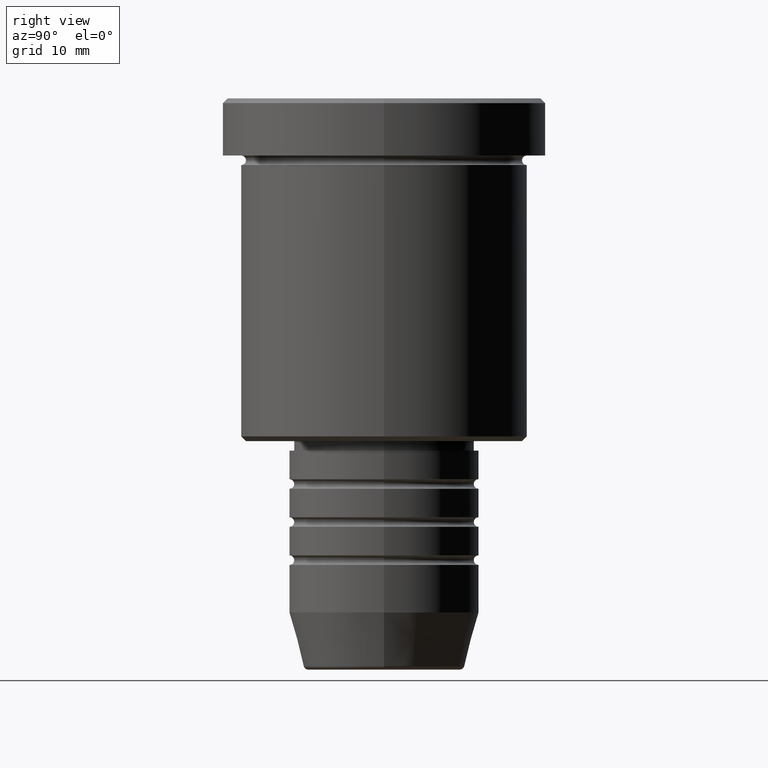
[diagram: clean part render]
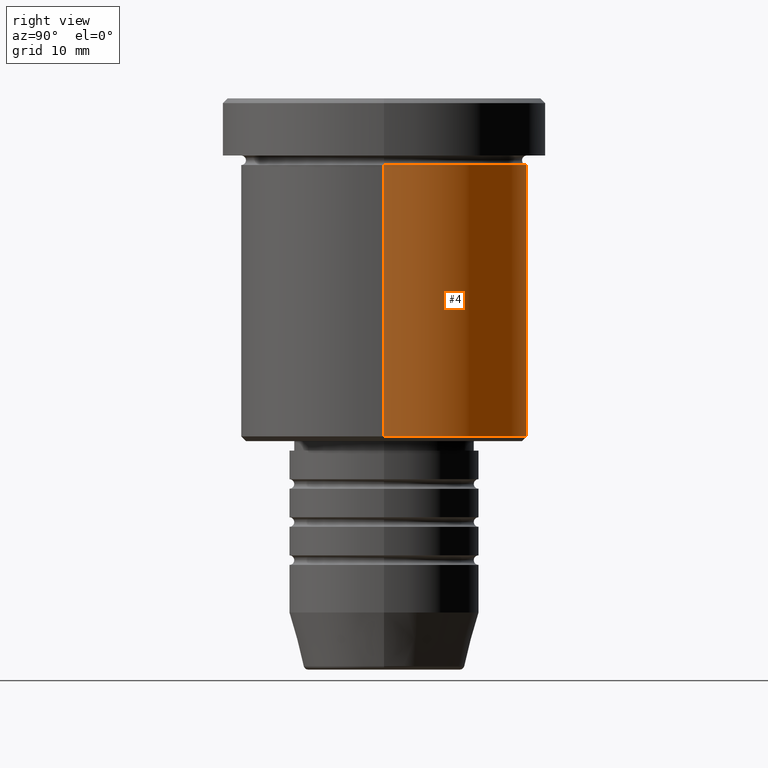
[diagram: same view with one face highlighted and labeled with its STEP entity id]
A machine part, right view. The second image highlights one B-rep face of the part: STEP entity #4.
In plain terms, the highlighted cylindrical surface (partial cylindrical patch) has radius 15 mm, axis along (-0, -0, 1).
Its self-contained STEP definition (entity closure, byte-faithful):
#4 = ADVANCED_FACE ( 'NONE', ( #286 ), #669, .T. ) ;
#5 = VERTEX_POINT ( 'NONE', #1098 ) ;
#25 = EDGE_CURVE ( 'NONE', #5, #571, #633, .T. ) ;
#73 = LINE ( 'NONE', #864, #943 ) ;
#75 = DIRECTION ( 'NONE',  ( 1.000000000000000000, 0.000000000000000000, 0.000000000000000000 ) ) ;
#107 = VERTEX_POINT ( 'NONE', #1065 ) ;
#111 = DIRECTION ( 'NONE',  ( -0.000000000000000000, -0.000000000000000000, 1.000000000000000000 ) ) ;
#134 = ORIENTED_EDGE ( 'NONE', *, *, #709, .T. ) ;
#166 = EDGE_LOOP ( 'NONE', ( #998, #134, #231, #1030 ) ) ;
#208 = CARTESIAN_POINT ( 'NONE',  ( 0.000000000000000000, 0.000000000000000000, 0.000000000000000000 ) ) ;
#231 = ORIENTED_EDGE ( 'NONE', *, *, #251, .F. ) ;
#250 = CARTESIAN_POINT ( 'NONE',  ( 15.00000000000000000, 0.000000000000000000, -6.999999999999995559 ) ) ;
#251 = EDGE_CURVE ( 'NONE', #312, #107, #885, .T. ) ;
#286 = FACE_OUTER_BOUND ( 'NONE', #166, .T. ) ;
#312 = VERTEX_POINT ( 'NONE', #250 ) ;
#344 = AXIS2_PLACEMENT_3D ( 'NONE', #641, #719, #75 ) ;
#346 = VECTOR ( 'NONE', #364, 1000.000000000000000 ) ;
#364 = DIRECTION ( 'NONE',  ( -0.000000000000000000, -0.000000000000000000, 1.000000000000000000 ) ) ;
#438 = LINE ( 'NONE', #824, #346 ) ;
#466 = DIRECTION ( 'NONE',  ( 1.000000000000000000, 0.000000000000000000, 0.000000000000000000 ) ) ;
#486 = DIRECTION ( 'NONE',  ( -1.000000000000000000, 0.000000000000000000, 0.000000000000000000 ) ) ;
#571 = VERTEX_POINT ( 'NONE', #896 ) ;
#631 = AXIS2_PLACEMENT_3D ( 'NONE', #857, #111, #486 ) ;
#633 = CIRCLE ( 'NONE', #631, 15.00000000000000000 ) ;
#641 = CARTESIAN_POINT ( 'NONE',  ( 0.000000000000000000, 0.000000000000000000, -6.999999999999995559 ) ) ;
#669 = CYLINDRICAL_SURFACE ( 'NONE', #846, 15.00000000000000000 ) ;
#709 = EDGE_CURVE ( 'NONE', #571, #107, #438, .T. ) ;
#719 = DIRECTION ( 'NONE',  ( -0.000000000000000000, -0.000000000000000000, 1.000000000000000000 ) ) ;
#782 = EDGE_CURVE ( 'NONE', #5, #312, #73, .T. ) ;
#824 = CARTESIAN_POINT ( 'NONE',  ( -15.00000000000000000, 1.836970198721029589E-15, 0.000000000000000000 ) ) ;
#846 = AXIS2_PLACEMENT_3D ( 'NONE', #208, #950, #466 ) ;
#853 = DIRECTION ( 'NONE',  ( -0.000000000000000000, -0.000000000000000000, 1.000000000000000000 ) ) ;
#857 = CARTESIAN_POINT ( 'NONE',  ( 0.000000000000000000, 0.000000000000000000, -35.49999999999999289 ) ) ;
#864 = CARTESIAN_POINT ( 'NONE',  ( 15.00000000000000000, 0.000000000000000000, 0.000000000000000000 ) ) ;
#885 = CIRCLE ( 'NONE', #344, 15.00000000000000000 ) ;
#896 = CARTESIAN_POINT ( 'NONE',  ( -15.00000000000000000, 1.836970198721029589E-15, -35.49999999999999289 ) ) ;
#943 = VECTOR ( 'NONE', #853, 1000.000000000000000 ) ;
#950 = DIRECTION ( 'NONE',  ( -0.000000000000000000, -0.000000000000000000, 1.000000000000000000 ) ) ;
#998 = ORIENTED_EDGE ( 'NONE', *, *, #25, .T. ) ;
#1030 = ORIENTED_EDGE ( 'NONE', *, *, #782, .F. ) ;
#1065 = CARTESIAN_POINT ( 'NONE',  ( -15.00000000000000000, 1.836970198721029589E-15, -6.999999999999995559 ) ) ;
#1098 = CARTESIAN_POINT ( 'NONE',  ( 15.00000000000000000, 0.000000000000000000, -35.49999999999999289 ) ) ;